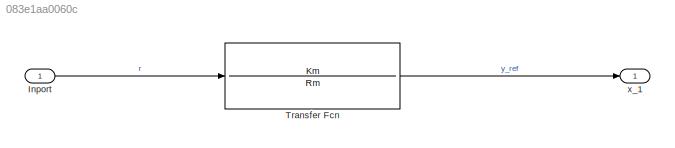
MODEL slx_083e1aa0060c
KIND model
CONFIG AbsTol = auto
CONFIG EnableMultiTasking = off
CONFIG FixedStep = auto
CONFIG MaxStep = auto
CONFIG MinStep = auto
CONFIG RelTol = 1e-3
CONFIG SampleTimeConstraint = Unconstrained
CONFIG SolverName = VariableStepAuto
CONFIG StartTime = 0.0
CONFIG StopTime = 10.0
BLOCK [Inport] Inport
BLOCK [TransferFcn] Transfer Fcn
  Denominator = Rm
  Numerator = Km
BLOCK [Outport] x_1
LINE Inport:1 -> Transfer Fcn:1
LINE Transfer Fcn:1 -> x_1:1
